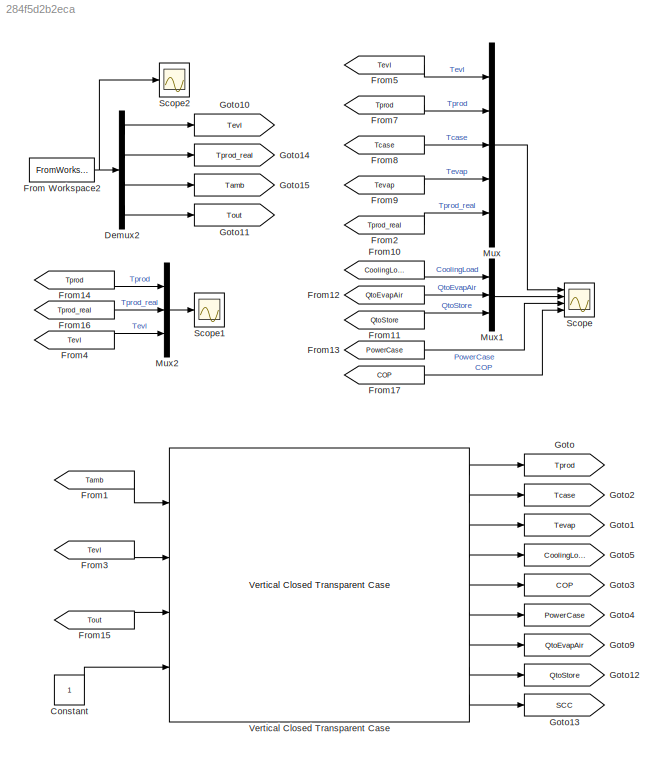
MODEL slx_284f5d2b2eca
KIND model
CONFIG AbsTol = auto
CONFIG FixedStep = auto
CONFIG MaxStep = auto
CONFIG MinStep = auto
CONFIG RelTol = 1e-3
CONFIG SampleTimeConstraint = Unconstrained
CONFIG Solver = ode45
CONFIG SolverMode = Auto
CONFIG SolverName = ode45
CONFIG StartTime = 0.0
CONFIG StopTime = 24*3600
BLOCK [Constant] Constant
BLOCK [Demux] Demux2
  DisplayOption = bar
  Ports = [1, 4]
BLOCK [FromWorkspace] From Workspace2
  SampleTime = 0
  VariableName = reachin
  ZeroCross = on
BLOCK [From] From1
  GotoTag = Tamb
BLOCK [From] From10
  GotoTag = CoolingLoad
BLOCK [From] From11
  GotoTag = QtoStore
BLOCK [From] From12
  GotoTag = QtoEvapAir
BLOCK [From] From13
  GotoTag = PowerCase
BLOCK [From] From14
  GotoTag = Tprod
BLOCK [From] From15
  GotoTag = Tout
BLOCK [From] From16
  GotoTag = Tprod_real
BLOCK [From] From17
  GotoTag = COP
BLOCK [From] From2
  GotoTag = Tprod_real
BLOCK [From] From3
  GotoTag = Tevl
BLOCK [From] From4
  GotoTag = Tevl
BLOCK [From] From5
  GotoTag = Tevl
BLOCK [From] From7
  GotoTag = Tprod
BLOCK [From] From8
  GotoTag = Tcase
BLOCK [From] From9
  GotoTag = Tevap
BLOCK [Goto] Goto
  GotoTag = Tprod
BLOCK [Goto] Goto1
  GotoTag = Tevap
BLOCK [Goto] Goto10
  GotoTag = Tevl
BLOCK [Goto] Goto11
  GotoTag = Tout
BLOCK [Goto] Goto12
  GotoTag = QtoStore
BLOCK [Goto] Goto13
  GotoTag = SCC
BLOCK [Goto] Goto14
  GotoTag = Tprod_real
BLOCK [Goto] Goto15
  GotoTag = Tamb
BLOCK [Goto] Goto2
  GotoTag = Tcase
BLOCK [Goto] Goto3
  GotoTag = COP
BLOCK [Goto] Goto4
  GotoTag = PowerCase
BLOCK [Goto] Goto5
  GotoTag = CoolingLoad
BLOCK [Goto] Goto9
  GotoTag = QtoEvapAir
BLOCK [Mux] Mux
  DisplayOption = bar
  Inputs = 5
  Ports = [5, 1]
BLOCK [Mux] Mux1
  DisplayOption = bar
  Inputs = 3
  Ports = [3, 1]
BLOCK [Mux] Mux2
  DisplayOption = bar
  Inputs = 3
  Ports = [3, 1]
BLOCK [Scope] Scope
  Floating = off
  LegendLocations = 0.80346     0.84933     0.14928     0.10086\n0.79563     0.65403     0.15711    0.062653\n0.81193     0.45874     0.14146     0.02445\n0.85887     0.22524    0.094524     0.02445
  LimitDataPoints = off
  NumInputPorts = 4
  Ports = [4]
  ShowLegends = on
  TimeRange = 700000
  YMax = 40~10000~60~5
  YMin = -30~-10000~0~-5
BLOCK [Scope] Scope1
  Floating = off
  LegendLocations = 0.80411     0.88725     0.14928    0.062806
  LimitDataPoints = off
  NumInputPorts = 1
  Ports = [1]
  SaveName = ScopeData1
  ShowLegends = on
  TimeRange = 700000
  YMin = -25
BLOCK [Scope] Scope2
  Floating = off
  LimitDataPoints = off
  NumInputPorts = 1
  Ports = [1]
  SaveName = ScopeData2
  ShowLegends = on
  TimeRange = 700000
  YMin = -25
BLOCK [Reference] Vertical Closed Transparent Case  REF=refrigeration/Refrigeration/Vertical Closed Transparent Case  (lib defined in slx_e5051c2510bc)
  Alpha = 3.8101e-2
  Beta = 1.0376e-2
  Ccase = 9.4247e5
  Cevap = 150000
  Cprod = 9.6310e4
  Gamma = 1.2792e-2
  LHR = 0.1011
  Ports = [4, 9]
  Qinternal = 1484
  RatedLoad = 4255
  Rcase = 7.7559e-2
  SourceBlock = refrigeration/Refrigeration/Vertical Closed Transparent Case
  SourceType = Vertical Closed Transparent Case
  Tcase_0 = 0
  Tevap_0 = 0
  Tprod_0 = 0
  p_value = 500
LINE Constant:1 -> Vertical Closed Transparent Case:4
LINE Demux2:1 -> Goto10:1
LINE Demux2:2 -> Goto14:1
LINE Demux2:3 -> Goto15:1
LINE Demux2:4 -> Goto11:1
NET From Workspace2:1 -> Demux2:1, Scope2:1
LINE From10:1 -> Mux1:1
LINE From11:1 -> Mux1:3
LINE From12:1 -> Mux1:2
LINE From13:1 -> Scope:3
LINE From14:1 -> Mux2:1
LINE From15:1 -> Vertical Closed Transparent Case:3
LINE From16:1 -> Mux2:2
LINE From17:1 -> Scope:4
LINE From1:1 -> Vertical Closed Transparent Case:1
LINE From2:1 -> Mux:5
LINE From3:1 -> Vertical Closed Transparent Case:2
LINE From4:1 -> Mux2:3
LINE From5:1 -> Mux:1
LINE From7:1 -> Mux:2
LINE From8:1 -> Mux:3
LINE From9:1 -> Mux:4
LINE Mux1:1 -> Scope:2
LINE Mux2:1 -> Scope1:1
LINE Mux:1 -> Scope:1
LINE Vertical Closed Transparent Case:1 -> Goto:1
LINE Vertical Closed Transparent Case:2 -> Goto2:1
LINE Vertical Closed Transparent Case:3 -> Goto1:1
LINE Vertical Closed Transparent Case:4 -> Goto5:1
LINE Vertical Closed Transparent Case:5 -> Goto3:1
LINE Vertical Closed Transparent Case:6 -> Goto4:1
LINE Vertical Closed Transparent Case:7 -> Goto9:1
LINE Vertical Closed Transparent Case:8 -> Goto12:1
LINE Vertical Closed Transparent Case:9 -> Goto13:1
note: NET lines group one-source signal fan-out (src -> all destinations, sorted); 1:1 wires keep LINE
